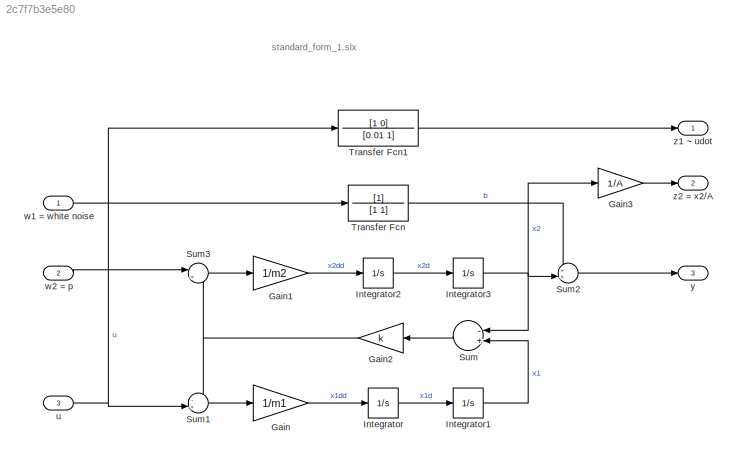
MODEL slx_2c7f7b3e5e80
KIND model
CONFIG AbsTol = auto
CONFIG EnableMultiTasking = on
CONFIG FixedStep = auto
CONFIG MaxStep = auto
CONFIG MinStep = auto
CONFIG RelTol = 1e-3
CONFIG SampleTimeConstraint = Unconstrained
CONFIG Solver = ode45
CONFIG SolverName = ode45
CONFIG StartTime = 0.0
CONFIG StopTime = 100.0
BLOCK [Gain] Gain
  Gain = 1/m1
BLOCK [Gain] Gain1
  Gain = 1/m2
BLOCK [Gain] Gain2
  Gain = k
BLOCK [Gain] Gain3
  Gain = 1/A
BLOCK [Integrator] Integrator
  Ports = [1, 1]
BLOCK [Integrator] Integrator1
  Ports = [1, 1]
BLOCK [Integrator] Integrator2
  Ports = [1, 1]
BLOCK [Integrator] Integrator3
  Ports = [1, 1]
BLOCK [Sum] Sum
  Inputs = -+
  Ports = [2, 1]
BLOCK [Sum] Sum1
  IconShape = round
  Inputs = -+|
  Ports = [2, 1]
BLOCK [Sum] Sum2
  IconShape = round
  Inputs = ++|
  Ports = [2, 1]
BLOCK [Sum] Sum3
  IconShape = round
  Inputs = |++
  Ports = [2, 1]
BLOCK [TransferFcn] Transfer Fcn
  Denominator = [1 1]
BLOCK [TransferFcn] Transfer Fcn1
  Denominator = [0.01 1]
  Numerator = [1 0]
BLOCK [Inport] u
  IconDisplay = Port number
  Port = 3
BLOCK [Inport] w1 = white noise
  IconDisplay = Port number
BLOCK [Inport] w2 = p
  IconDisplay = Port number
  Port = 2
BLOCK [Outport] y
  IconDisplay = Port number
  Port = 3
BLOCK [Outport] z1 ~ udot
  IconDisplay = Port number
BLOCK [Outport] z2 = x2//A
  IconDisplay = Port number
  Port = 2
ANNOTATION (root): standard_form_1.slx
LINE Gain1:1 -> Integrator2:1
NET Gain2:1 -> Sum1:1, Sum3:2
LINE Gain3:1 -> z2 = x2//A:1
LINE Gain:1 -> Integrator:1
LINE Integrator1:1 -> Sum:2
LINE Integrator2:1 -> Integrator3:1
NET Integrator3:1 -> Gain3:1, Sum2:2, Sum:1
LINE Integrator:1 -> Integrator1:1
LINE Sum1:1 -> Gain:1
LINE Sum2:1 -> y:1
LINE Sum3:1 -> Gain1:1
LINE Sum:1 -> Gain2:1
LINE Transfer Fcn1:1 -> z1 ~ udot:1
LINE Transfer Fcn:1 -> Sum2:1
NET u:1 -> Sum1:2, Transfer Fcn1:1
LINE w1 = white noise:1 -> Transfer Fcn:1
LINE w2 = p:1 -> Sum3:1
note: NET lines group one-source signal fan-out (src -> all destinations, sorted); 1:1 wires keep LINE
